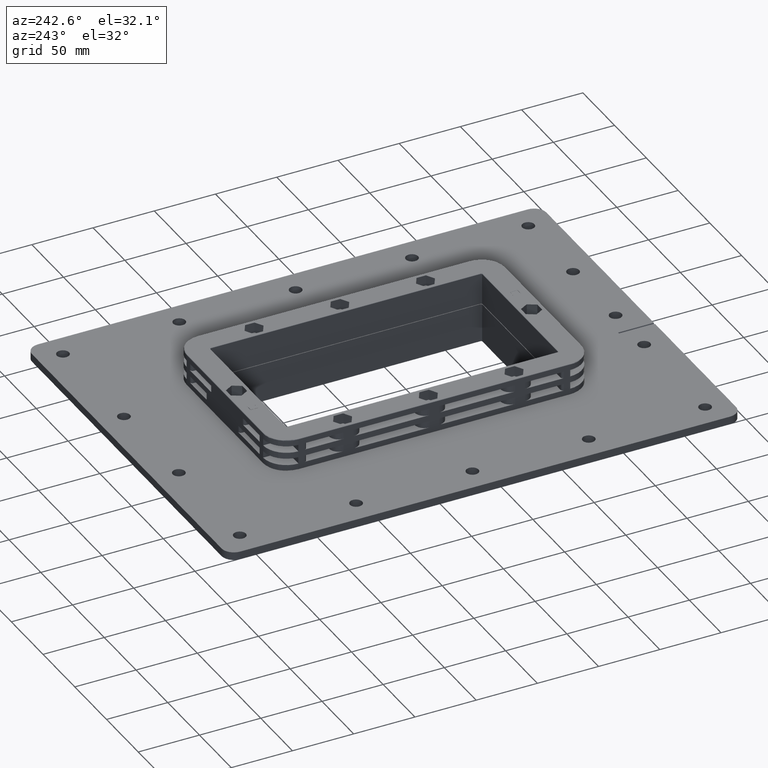
[diagram: clean part render]
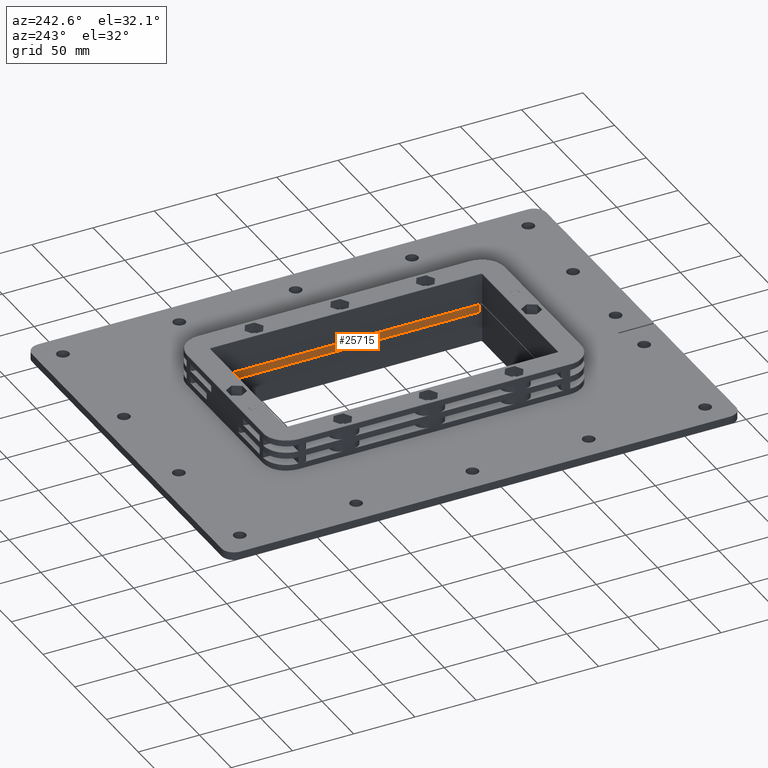
[diagram: same view with one face highlighted and labeled with its STEP entity id]
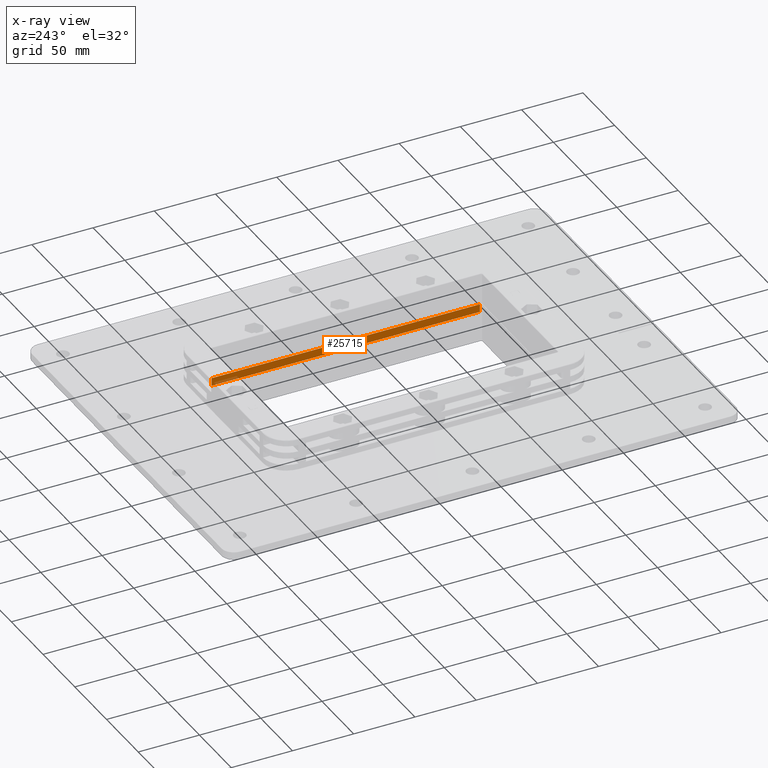
[diagram: x-ray of the same camera — body ghosted, the highlighted face saturated]
A machine part, auxiliary view. The second image highlights one B-rep face of the part: STEP entity #25715.
The next image is the same camera in x-ray: the body ghosted, the highlighted face saturated — about 3% of this face is hidden behind the body in this view.
In plain terms, the highlighted planar face has unit normal (1, 0, -0).
Its self-contained STEP definition (entity closure, byte-faithful):
#23832=CARTESIAN_POINT('',(589.759073085387630,578.507604351443210,0.0));
#23833=VERTEX_POINT('',#23832);
#23841=CARTESIAN_POINT('',(589.759073085387630,578.507604351443210,6.500000000000000));
#23842=VERTEX_POINT('',#23841);
#23843=CARTESIAN_POINT('',(589.759073085387630,578.507604351443210,0.0));
#23844=DIRECTION('',(0.0,0.0,1.0));
#23845=VECTOR('',#23844,6.500000000000000);
#23846=LINE('',#23843,#23845);
#23847=EDGE_CURVE('',#23833,#23842,#23846,.T.);
#24982=CARTESIAN_POINT('',(589.759073085387630,359.507604351443260,0.0));
#24983=VERTEX_POINT('',#24982);
#24991=CARTESIAN_POINT('',(589.759073085387630,359.507604351443260,0.0));
#24992=DIRECTION('',(0.0,1.0,0.0));
#24993=VECTOR('',#24992,218.999999999999940);
#24994=LINE('',#24991,#24993);
#24995=EDGE_CURVE('',#24983,#23833,#24994,.T.);
#25333=CARTESIAN_POINT('',(589.759073085387630,359.507604351443260,6.500000000000000));
#25334=VERTEX_POINT('',#25333);
#25335=CARTESIAN_POINT('',(589.759073085387630,578.507604351443210,6.500000000000000));
#25336=DIRECTION('',(0.0,-1.0,0.0));
#25337=VECTOR('',#25336,218.999999999999940);
#25338=LINE('',#25335,#25337);
#25339=EDGE_CURVE('',#23842,#25334,#25338,.T.);
#25699=CARTESIAN_POINT('',(589.759073085387630,580.007604351443210,0.0));
#25700=DIRECTION('',(1.0,0.0,0.0));
#25701=DIRECTION('',(0.0,0.0,-1.0));
#25702=AXIS2_PLACEMENT_3D('',#25699,#25700,#25701);
#25703=PLANE('',#25702);
#25704=ORIENTED_EDGE('',*,*,#23847,.F.);
#25705=ORIENTED_EDGE('',*,*,#24995,.F.);
#25706=CARTESIAN_POINT('',(589.759073085387630,359.507604351443260,6.500000000000000));
#25707=DIRECTION('',(0.0,0.0,-1.0));
#25708=VECTOR('',#25707,6.500000000000000);
#25709=LINE('',#25706,#25708);
#25710=EDGE_CURVE('',#25334,#24983,#25709,.T.);
#25711=ORIENTED_EDGE('',*,*,#25710,.F.);
#25712=ORIENTED_EDGE('',*,*,#25339,.F.);
#25713=EDGE_LOOP('',(#25704,#25705,#25711,#25712));
#25714=FACE_OUTER_BOUND('',#25713,.T.);
#25715=ADVANCED_FACE('',(#25714),#25703,.F.);